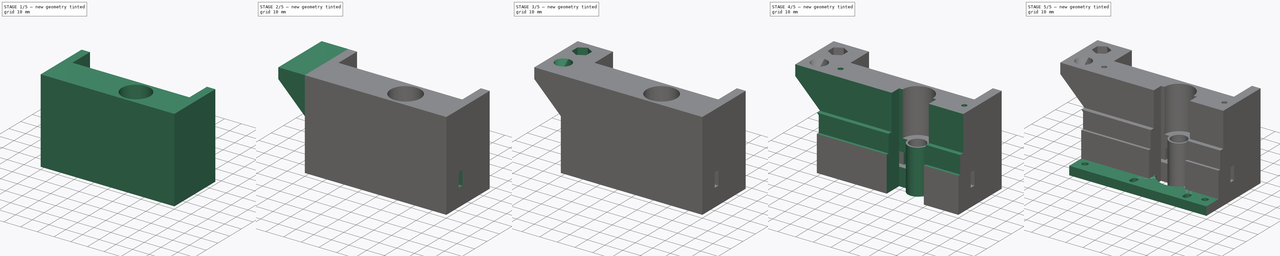
[diagram: build sequence overview — one tinted view per stage of 5, left to right]
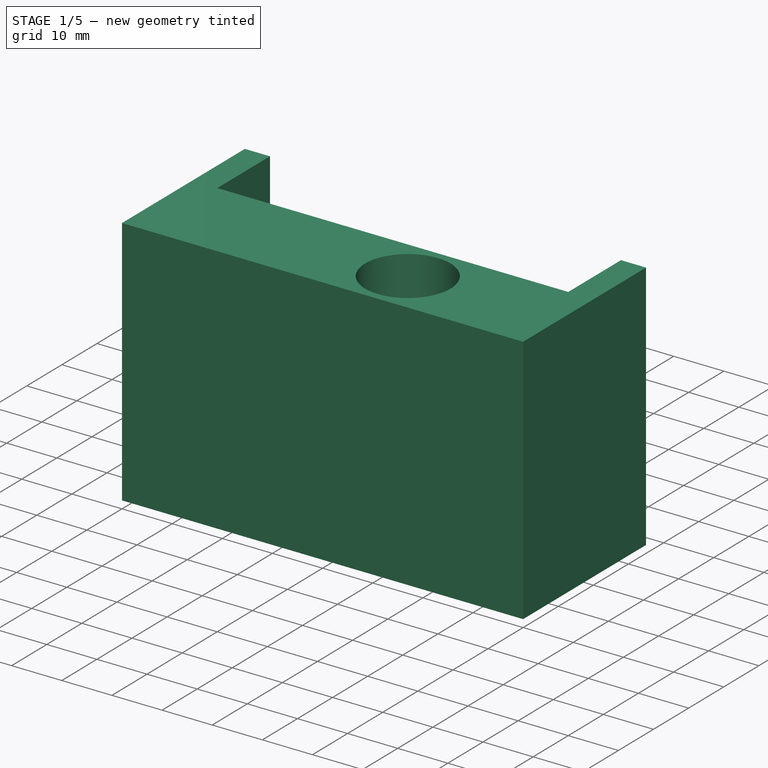
[diagram: stage 1 of 5 — iso view after this stage's code; geometry added in this stage tinted green]
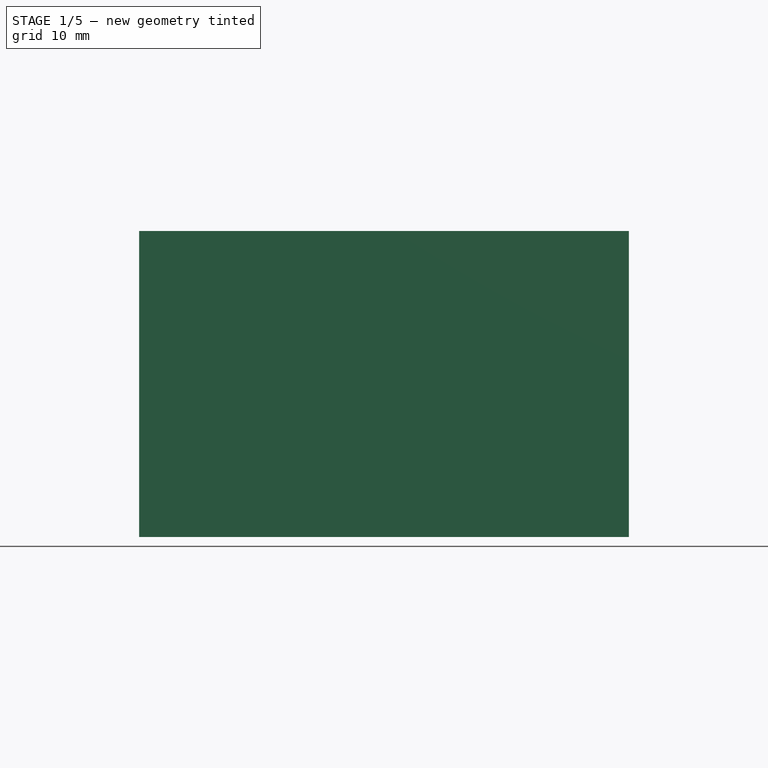
[diagram: stage 1 of 5 — front view after this stage's code; geometry added in this stage tinted green]
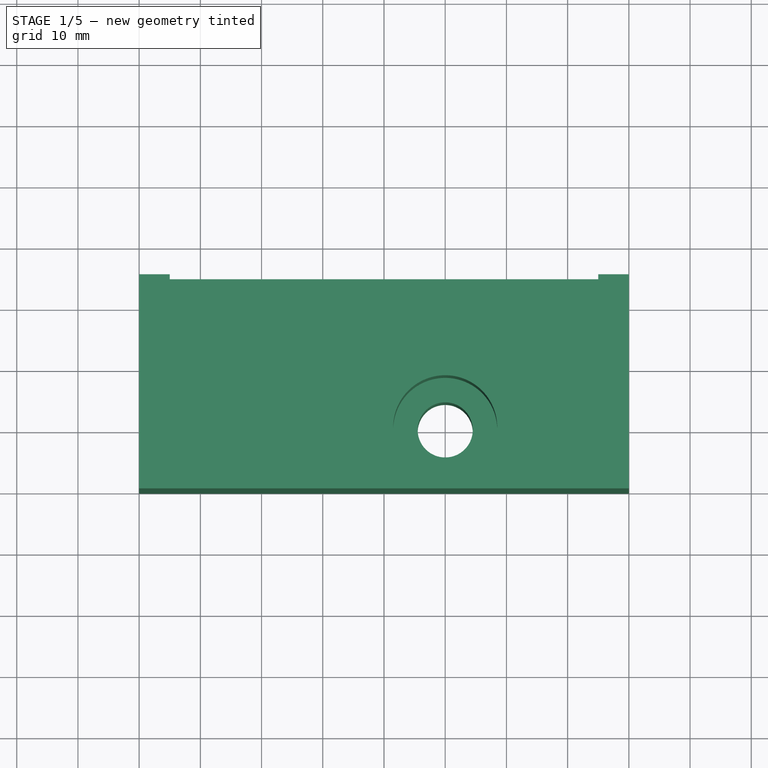
[diagram: stage 1 of 5 — top view after this stage's code; geometry added in this stage tinted green]
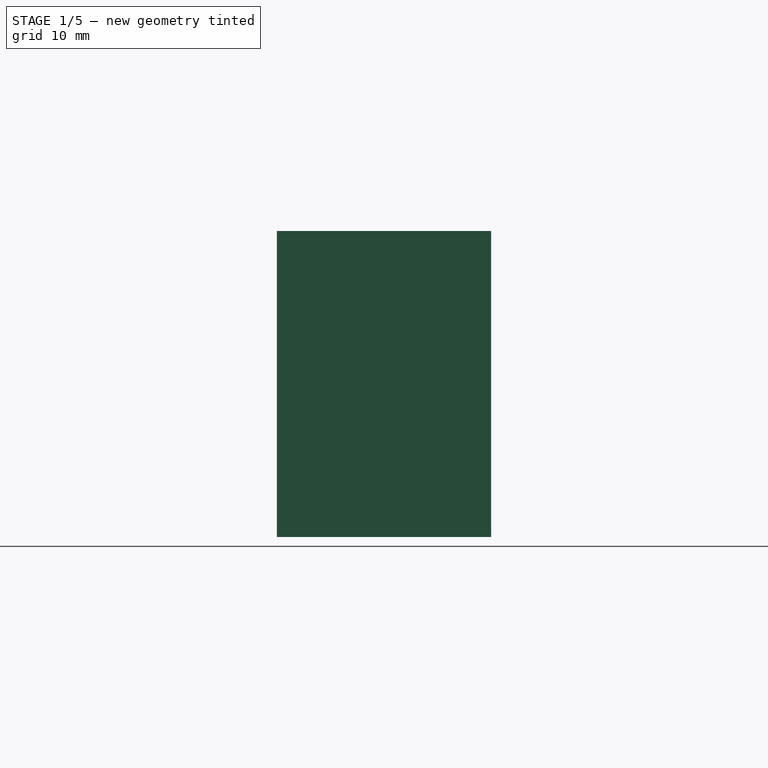
[diagram: stage 1 of 5 — right view after this stage's code; geometry added in this stage tinted green]
FCSTD DOCUMENT  (FreeCAD 0.19R)
Label: Ztower
License: All rights reserved
LicenseURL: http://en.wikipedia.org/wiki/All_rights_reserved
objects: Sketcher::SketchObject×20, PartDesign::Pocket×16, PartDesign::Pad×4, PartDesign::Body×2
note: 62 computed .brp shape members not serialized (recipe doc carries the construction recipe); baked Part::Feature solids carry a one-line shape summary decoded from their .brp

FEATURE [Sketcher::SketchObject] Sketch  label="body"
  FullyConstrained = true
  MapMode = 5
  Support = -> [XY_Plane]
  sketch-geometry (6):
    g0: LineSegment StartX=-40 StartY=35 StartZ=0 EndX=40 EndY=35 EndZ=0
    g1: LineSegment StartX=40 StartY=35 StartZ=0 EndX=40 EndY=0 EndZ=0
    g2: LineSegment StartX=40 StartY=0 StartZ=0 EndX=-40 EndY=0 EndZ=0
    g3: LineSegment StartX=-40 StartY=0 StartZ=0 EndX=-40 EndY=35 EndZ=0
    g4: Circle CenterX=-30 CenterY=5 CenterZ=0 NormalX=0 NormalY=0 NormalZ=1 AngleXU=0 Radius=2.4
    g5: Circle CenterX=30 CenterY=5 CenterZ=0 NormalX=0 NormalY=0 NormalZ=1 AngleXU=0 Radius=2.4
  constraints (16):
    c: Coincident(g0,g1)
    c: Coincident(g1,g2)
    c: Coincident(g2,g3)
    c: Coincident(g3,g0)
    c: Horizontal(g0)
    c: Vertical(g1)
    c: Vertical(g3)
    c: PointOnObject(g1,g-1)
    c: Symmetric(g1,g2,g-2)
    c: Symmetric(g4,g5,g-2)
    c: Distance(g5,g4) = 60
    c: Diameter(g5) = 4.8
    c: Equal(g5,g4)
    c: DistanceY(g5) = 5
    c: Distance(g2) = 80
    c: Distance(g1) = 35
FEATURE [PartDesign::Pad] Pad
  Direction = (1,1,1)
  Length = 50
  Length2 = 100
  Profile = -> Sketch
  Type = 0
FEATURE [PartDesign::Body] Body001  label="StepperBase"
  Group = -> [Sketch003,Pad001]
  Origin = -> Origin001
  Placement = pos=(0,0,50) rot=(0,0,1;0rad)
  Tip = -> Pad001
FEATURE [Sketcher::SketchObject] Sketch004  label="wiringbox"
  FullyConstrained = true
  MapMode = 5
  Placement = pos=(0,35,0) rot=(0,0.707107,0.707107;3.14159rad)
  sketch-geometry (4):
    g0: LineSegment StartX=-35 StartY=60 StartZ=0 EndX=35 EndY=60 EndZ=0
    g1: LineSegment StartX=35 StartY=60 StartZ=0 EndX=35 EndY=3 EndZ=0
    g2: LineSegment StartX=35 StartY=3 StartZ=0 EndX=-35 EndY=3 EndZ=0
    g3: LineSegment StartX=-35 StartY=3 StartZ=0 EndX=-35 EndY=60 EndZ=0
  constraints (11):
    c: Coincident(g0,g1)
    c: Coincident(g1,g2)
    c: Coincident(g2,g3)
    c: Coincident(g3,g0)
    c: Horizontal(g0)
    c: Vertical(g1)
    c: Vertical(g3)
    c: Symmetric(g1,g2,g-2)
    c: DistanceY(g1) = 3
    c: Distance(g2) = 70
    c: DistanceY(g0) = 60
FEATURE [Sketcher::SketchObject] Sketch005  label="DB37"
  FullyConstrained = false
  MapMode = 5
  Placement = pos=(0,7e-16,3) rot=(0,0,1;0rad)
  sketch-geometry (7):
    g0: LineSegment StartX=-29 StartY=33 StartZ=0 EndX=29 EndY=33 EndZ=0
    g1: LineSegment StartX=29 StartY=33 StartZ=0 EndX=29 EndY=21.5 EndZ=0
    g2: LineSegment StartX=29 StartY=21.5 StartZ=0 EndX=-29 EndY=21.5 EndZ=0
    g3: LineSegment StartX=-29 StartY=21.5 StartZ=0 EndX=-29 EndY=33 EndZ=0
    g4: Circle CenterX=-31.75 CenterY=27.25 CenterZ=0 NormalX=0 NormalY=0 NormalZ=1 AngleXU=0 Radius=1.4
    g5: Circle CenterX=31.75 CenterY=27.25 CenterZ=0 NormalX=0 NormalY=0 NormalZ=1 AngleXU=0 Radius=1.4
    g6: LineSegment StartX=-53.06 StartY=27.25 StartZ=0 EndX=58.6362 EndY=27.25 EndZ=0
  constraints (17):
    c: Coincident(g0,g1)
    c: Coincident(g1,g2)
    c: Coincident(g2,g3)
    c: Coincident(g3,g0)
    c: Horizontal(g2)
    c: Vertical(g1)
    c: Vertical(g3)
    c: Distance(g0) = 58
    c: Symmetric(g0,g0,g-2)
    c: Distance(g1) = 11.5
    c: DistanceY(g0) = 33
    c: Distance(g5,g4) = 63.5
    c: Symmetric(g5,g4,g-2)
    c: Diameter(g5) = 2.8
    c: Equal(g5,g4)
    c: Symmetric(g2,g0,g6)
    c: PointOnObject(g4,g6)
FEATURE [Sketcher::SketchObject] Sketch006  label="sideports"
  FullyConstrained = true
  MapMode = 5
  Placement = pos=(-40,0,0) rot=(0.57735,-0.57735,-0.57735;2.0944rad)
  sketch-geometry (4):
    g0: LineSegment StartX=-13 StartY=18 StartZ=0 EndX=-10 EndY=18 EndZ=0
    g1: LineSegment StartX=-10 StartY=18 StartZ=0 EndX=-10 EndY=10 EndZ=0
    g2: LineSegment StartX=-10 StartY=10 StartZ=0 EndX=-13 EndY=10 EndZ=0
    g3: LineSegment StartX=-13 StartY=10 StartZ=0 EndX=-13 EndY=18 EndZ=0
  constraints (12):
    c: Coincident(g0,g1)
    c: Coincident(g1,g2)
    c: Coincident(g2,g3)
    c: Coincident(g3,g0)
    c: Horizontal(g0)
    c: Horizontal(g2)
    c: Vertical(g1)
    c: Vertical(g3)
    c: Distance(g2) = 3
    c: Distance(g3) = 8
    c: DistanceY(g1) = 10
    c: DistanceX(g1) = -10
FEATURE [Sketcher::SketchObject] Sketch007  label="ports"
  FullyConstrained = true
  MapMode = 5
  Placement = pos=(0,20,-5e-15) rot=(0,0.707107,0.707107;3.14159rad)
  sketch-geometry (8):
    g0: LineSegment StartX=-35 StartY=18 StartZ=0 EndX=-30 EndY=18 EndZ=0
    g1: LineSegment StartX=-30 StartY=18 StartZ=0 EndX=-30 EndY=10 EndZ=0
    g2: LineSegment StartX=-30 StartY=10 StartZ=0 EndX=-35 EndY=10 EndZ=0
    g3: LineSegment StartX=-35 StartY=10 StartZ=0 EndX=-35 EndY=18 EndZ=0
    g4: LineSegment StartX=30 StartY=18 StartZ=0 EndX=35 EndY=18 EndZ=0
    g5: LineSegment StartX=35 StartY=18 StartZ=0 EndX=35 EndY=10 EndZ=0
    g6: LineSegment StartX=35 StartY=10 StartZ=0 EndX=30 EndY=10 EndZ=0
    g7: LineSegment StartX=30 StartY=10 StartZ=0 EndX=30 EndY=18 EndZ=0
  constraints (23):
    c: Coincident(g0,g1)
    c: Coincident(g1,g2)
    c: Coincident(g2,g3)
    c: Coincident(g3,g0)
    c: Horizontal(g0)
    c: Horizontal(g2)
    c: Vertical(g1)
    c: Vertical(g3)
    c: Coincident(g4,g5)
    c: Coincident(g5,g6)
    c: Coincident(g6,g7)
    c: Coincident(g7,g4)
    c: Horizontal(g4)
    c: Horizontal(g6)
    c: Vertical(g5)
    c: Vertical(g7)
    c: DistanceY(g5) = 10
    c: DistanceY(g1) = 10
    c: Distance(g1) = 8
    c: Distance(g4) = 5
    c: Distance(g0) = 5
    c: Symmetric(g0,g4,g-2)
    c: DistanceX(g4) = 35
FEATURE [Sketcher::SketchObject] Sketch008  label="shtelfboss"
  FullyConstrained = true
  MapMode = 5
  Placement = pos=(0,35,0) rot=(0,0.707107,0.707107;3.14159rad)
  sketch-geometry (4):
    g0: LineSegment StartX=40 StartY=29 StartZ=0 EndX=55 EndY=44 EndZ=0
    g1: LineSegment StartX=55 StartY=44 StartZ=0 EndX=55 EndY=50 EndZ=0
    g2: LineSegment StartX=55 StartY=50 StartZ=0 EndX=40 EndY=50 EndZ=0
    g3: LineSegment StartX=40 StartY=50 StartZ=0 EndX=40 EndY=29 EndZ=0
  constraints (12):
    c: Coincident(g0,g1)
    c: Vertical(g1)
    c: Coincident(g1,g2)
    c: Horizontal(g2)
    c: Coincident(g2,g3)
    c: Coincident(g3,g0)
    c: Vertical(g3)
    c: DistanceX(g0) = 40
    c: Angle(g0) = 0.785398
    c: Distance(g1) = 6
    c: Distance(g2) = 15
    c: DistanceY(g2) = 50
FEATURE [Sketcher::SketchObject] Sketch009  label="umbillical"
  FullyConstrained = true
  MapMode = 5
  Placement = pos=(0,1.11e-14,50) rot=(0,0,1;0rad)
  sketch-geometry (8):
    g0: Circle CenterX=-47 CenterY=12 CenterZ=0 NormalX=0 NormalY=0 NormalZ=1 AngleXU=0 Radius=4.5
    g1: LineSegment StartX=-42.9 StartY=24.6329 StartZ=0 EndX=-42.9 EndY=29.3671 EndZ=0
    g2: LineSegment StartX=-42.9 StartY=29.3671 StartZ=0 EndX=-47 EndY=31.7343 EndZ=0
    g3: LineSegment StartX=-47 StartY=31.7343 StartZ=0 EndX=-51.1 EndY=29.3671 EndZ=0
    g4: LineSegment StartX=-51.1 StartY=29.3671 StartZ=0 EndX=-51.1 EndY=24.6329 EndZ=0
    g5: LineSegment StartX=-51.1 StartY=24.6329 StartZ=0 EndX=-47 EndY=22.2657 EndZ=0
    g6: LineSegment StartX=-47 StartY=22.2657 StartZ=0 EndX=-42.9 EndY=24.6329 EndZ=0
    g7: Circle CenterX=-47 CenterY=27 CenterZ=0 NormalX=0 NormalY=0 NormalZ=1 AngleXU=0 Radius=4.73427
  constraints (20):
    c: Diameter(g0) = 9
    c: DistanceX(g0) = -47
    c: Coincident(g1,g2)
    c: Coincident(g2,g3)
    c: Coincident(g3,g4)
    c: Coincident(g4,g5)
    c: Coincident(g5,g6)
    c: Coincident(g6,g1)
    c: Equal(g1, g2-g6) x5
    c: PointOnObject(g1,g7)
    c: PointOnObject(g2,g7)
    c: PointOnObject(g3,g7)
    c: PointOnObject(g4,g7)
    c: PointOnObject(g5,g7)
    c: PointOnObject(g6,g7)
    c: Distance(g4,g1) = 8.2
    c: DistanceX(g7) = -47
    c: Vertical(g4)
    c: DistanceY(g7) = 27
    c: DistanceY(g0) = 12
FEATURE [Sketcher::SketchObject] Sketch012  label="umbNotch"
  FullyConstrained = false
  MapMode = 5
  Placement = pos=(-40,0,0) rot=(0.57735,-0.57735,-0.57735;2.0944rad)
  sketch-geometry (7):
    g0: LineSegment StartX=-26.9733 StartY=16 StartZ=0 EndX=-22.9733 EndY=17.6569 EndZ=0
    g1: LineSegment StartX=-22.9733 StartY=17.6569 StartZ=0 EndX=-22.9733 EndY=26.6569 EndZ=0
    g2: LineSegment StartX=-30.9733 StartY=26.6569 StartZ=0 EndX=-30.9733 EndY=17.6569 EndZ=0
    g3: LineSegment StartX=-30.9733 StartY=17.6569 StartZ=0 EndX=-26.9733 EndY=16 EndZ=0
    g4: LineSegment StartX=-30.9733 StartY=26.6569 StartZ=0 EndX=-29.1561 EndY=28.4741 EndZ=0
    g5: LineSegment StartX=-29.1561 StartY=28.4741 StartZ=0 EndX=-24.7906 EndY=28.4741 EndZ=0
    g6: LineSegment StartX=-24.7906 StartY=28.4741 StartZ=0 EndX=-22.9733 EndY=26.6569 EndZ=0
  constraints (20):
    c: Coincident(g0,g1)
    c: Coincident(g2,g3)
    c: Coincident(g3,g0)
    c: Equal(g0,g3)
    c: Distance(g1) = 9
    c: Equal(g2,g1)
    c: Vertical(g1)
    c: Angle(g0,g3) = 2.35619
    c: Distance(g0,g2) = 8
    c: DistanceY(g0,g2) = 0
    c: DistanceY(g0) = 16
    c: Coincident(g2,g4)
    c: Coincident(g4,g5)
    c: Horizontal(g5)
    c: Coincident(g5,g6)
    c: Coincident(g6,g1)
    c: Angle(g4) = 0.785398
    c: Angle(g6) = -0.785398
    c: Vertical(g2)
    c: Distance(g6) = 2.57
FEATURE [Sketcher::SketchObject] Sketch013  label="printhNotch"
  FullyConstrained = false
  MapMode = 5
  Placement = pos=(-52,0,0) rot=(0.57735,-0.57735,-0.57735;2.0944rad)
  sketch-geometry (4):
    g0: LineSegment StartX=-16.5 StartY=41.843 StartZ=0 EndX=-7.5 EndY=41.843 EndZ=0
    g1: LineSegment StartX=-7.5 StartY=41.843 StartZ=0 EndX=-7.5 EndY=36.3811 EndZ=0
    g2: LineSegment StartX=-7.5 StartY=36.3811 StartZ=0 EndX=-16.5 EndY=36.3811 EndZ=0
    g3: LineSegment StartX=-16.5 StartY=36.3811 StartZ=0 EndX=-16.5 EndY=41.843 EndZ=0
  constraints (10):
    c: Coincident(g0,g1)
    c: Coincident(g1,g2)
    c: Coincident(g2,g3)
    c: Coincident(g3,g0)
    c: Horizontal(g0)
    c: Horizontal(g2)
    c: Vertical(g1)
    c: Vertical(g3)
    c: Distance(g2) = 9
    c: DistanceX(g1) = -7.5
FEATURE [Sketcher::SketchObject] Sketch014  label="pritnfilm"
  FullyConstrained = false
  MapMode = 5
  Placement = pos=(0,0,41.9005) rot=(1,0,0;3.14159rad)
  sketch-geometry (4):
    g0: LineSegment StartX=-52.8419 StartY=-7.51623 StartZ=0 EndX=-40.4441 EndY=-7.51623 EndZ=0
    g1: LineSegment StartX=-40.4441 StartY=-7.51623 StartZ=0 EndX=-40.4441 EndY=-16.4989 EndZ=0
    g2: LineSegment StartX=-40.4441 StartY=-16.4989 StartZ=0 EndX=-52.8419 EndY=-16.4989 EndZ=0
    g3: LineSegment StartX=-52.8419 StartY=-16.4989 StartZ=0 EndX=-52.8419 EndY=-7.51623 EndZ=0
  constraints (8):
    c: Coincident(g0,g1)
    c: Coincident(g1,g2)
    c: Coincident(g2,g3)
    c: Coincident(g3,g0)
    c: Horizontal(g0)
    c: Horizontal(g2)
    c: Vertical(g1)
    c: Vertical(g3)
FEATURE [PartDesign::Pocket] Pocket
  BaseFeature = -> Pad
  Length = 5
  Length2 = 100
  Profile = -> Sketch002
  Type = 1
FEATURE [Sketcher::SketchObject] Sketch015  label="Coupler"
  FullyConstrained = true
  MapMode = 5
  Placement = pos=(0,0,50) rot=(0,0,1;0rad)
  Support = -> [Pocket]
  sketch-geometry (1):
    g0: Circle CenterX=10 CenterY=10 CenterZ=0 NormalX=0 NormalY=0 NormalZ=1 AngleXU=0 Radius=8.5
  constraints (3):
    c: DistanceX(g0) = 10
    c: DistanceY(g0) = 10
    c: Diameter(g0) = 17
FEATURE [PartDesign::Pocket] Pocket001
  BaseFeature = -> Pocket
  Length = 25
  Length2 = 100
  Profile = -> Sketch015
  Type = 0
FEATURE [PartDesign::Pocket] Pocket002
  BaseFeature = -> Pocket001
  Length = 15
  Length2 = 100
  Profile = -> Sketch004
  Type = 0
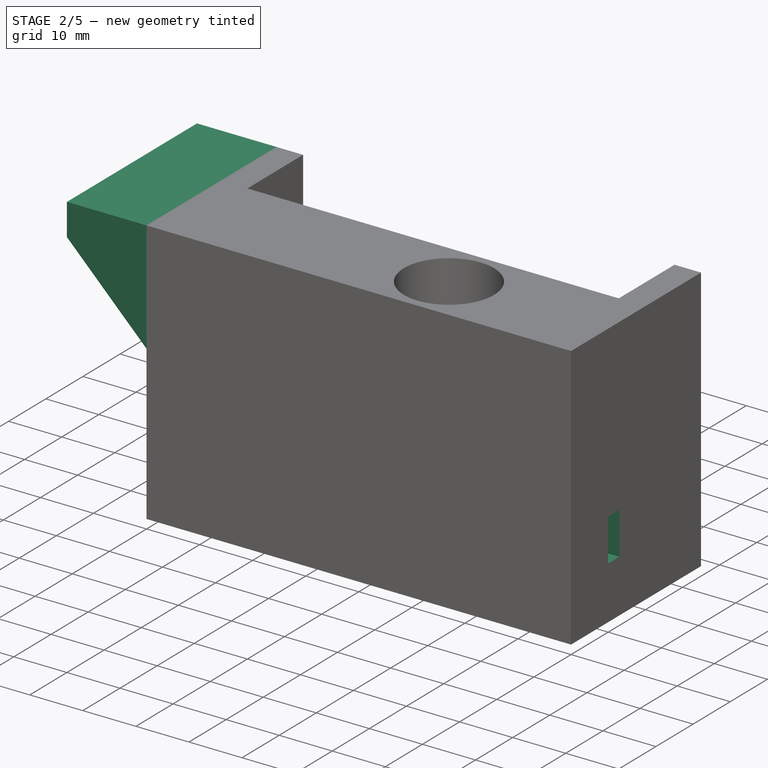
[diagram: stage 2 of 5 — iso view after this stage's code; geometry added in this stage tinted green]
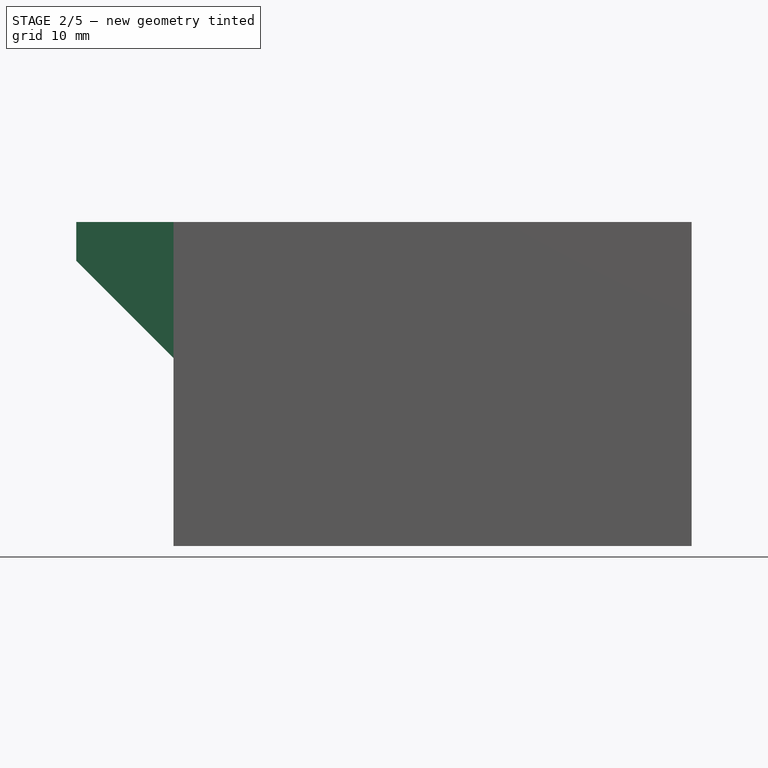
[diagram: stage 2 of 5 — front view after this stage's code; geometry added in this stage tinted green]
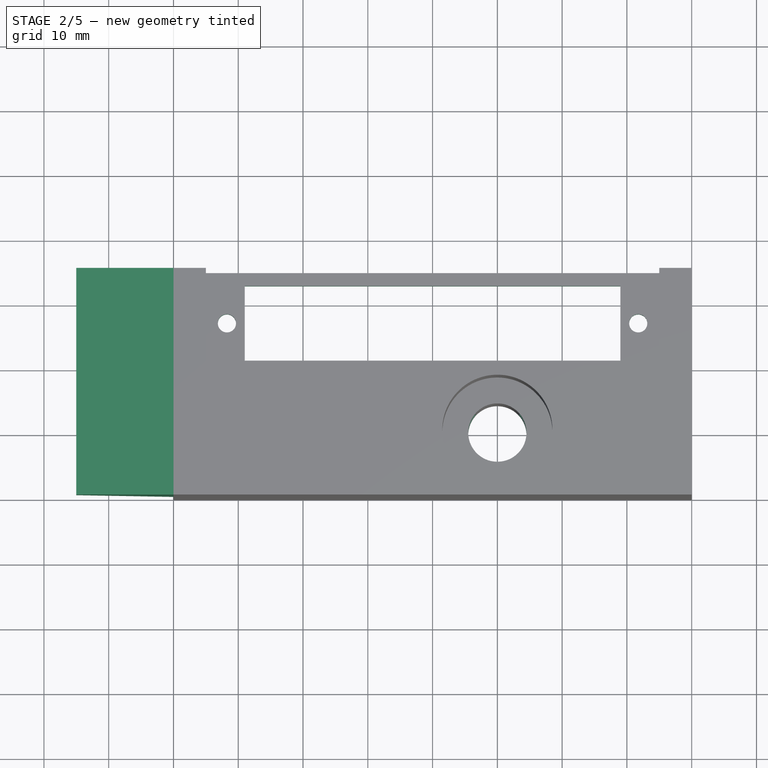
[diagram: stage 2 of 5 — top view after this stage's code; geometry added in this stage tinted green]
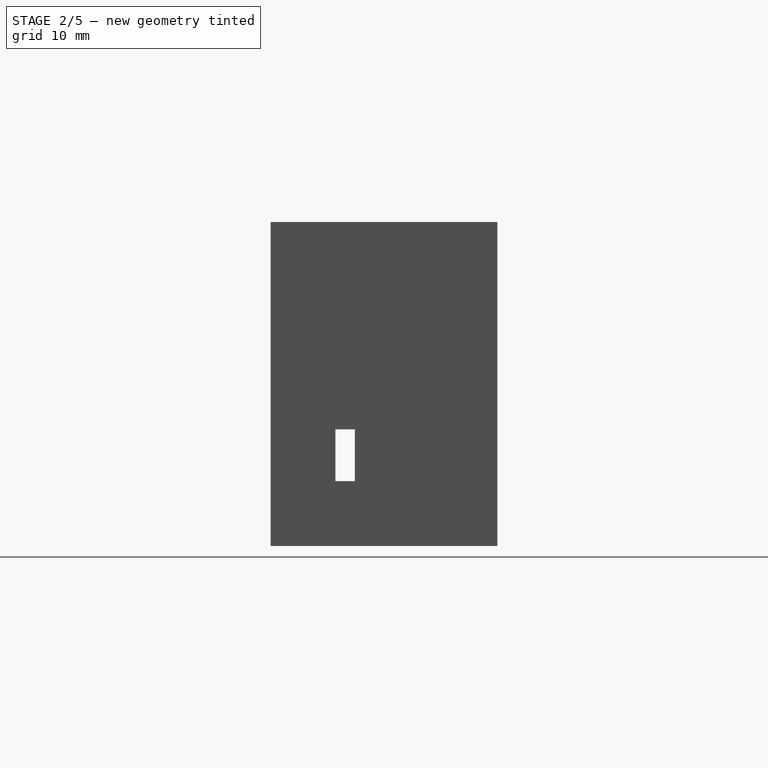
[diagram: stage 2 of 5 — right view after this stage's code; geometry added in this stage tinted green]
FEATURE [PartDesign::Pocket] Pocket003
  BaseFeature = -> Pocket002
  Length = 5
  Length2 = 100
  Profile = -> Sketch005
  Type = 0
FEATURE [PartDesign::Pocket] Pocket004
  BaseFeature = -> Pocket003
  Length = 5
  Length2 = 100
  Profile = -> Sketch006
  Type = 1
FEATURE [PartDesign::Pocket] Pocket005
  BaseFeature = -> Pocket004
  Length = 10
  Length2 = 100
  Profile = -> Sketch007
  Type = 0
FEATURE [PartDesign::Pad] Pad002
  BaseFeature = -> Pocket005
  Direction = (1,1,1)
  Length = 35
  Length2 = 100
  Profile = -> Sketch008
  Reversed = true
  Type = 0
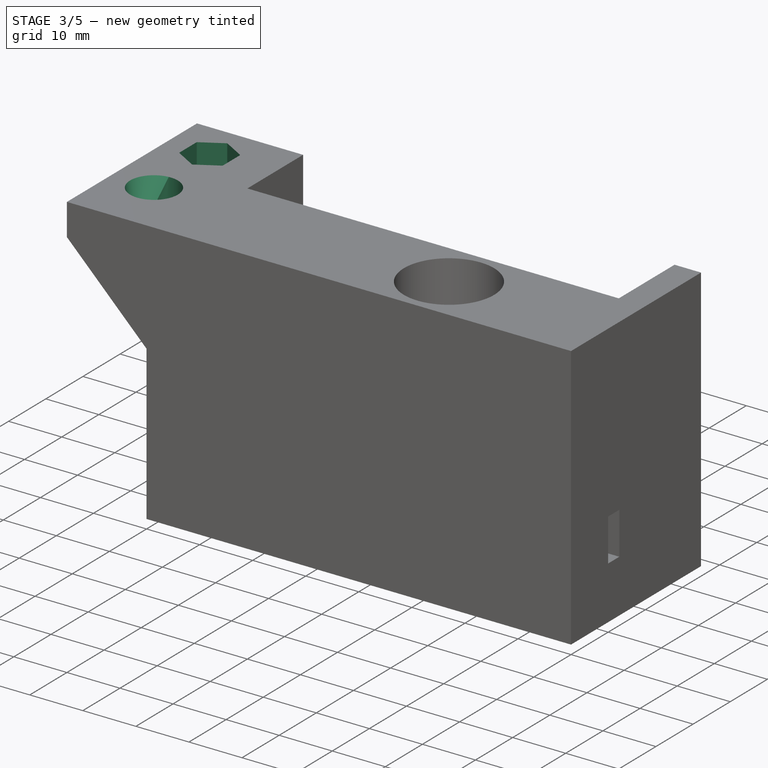
[diagram: stage 3 of 5 — iso view after this stage's code; geometry added in this stage tinted green]
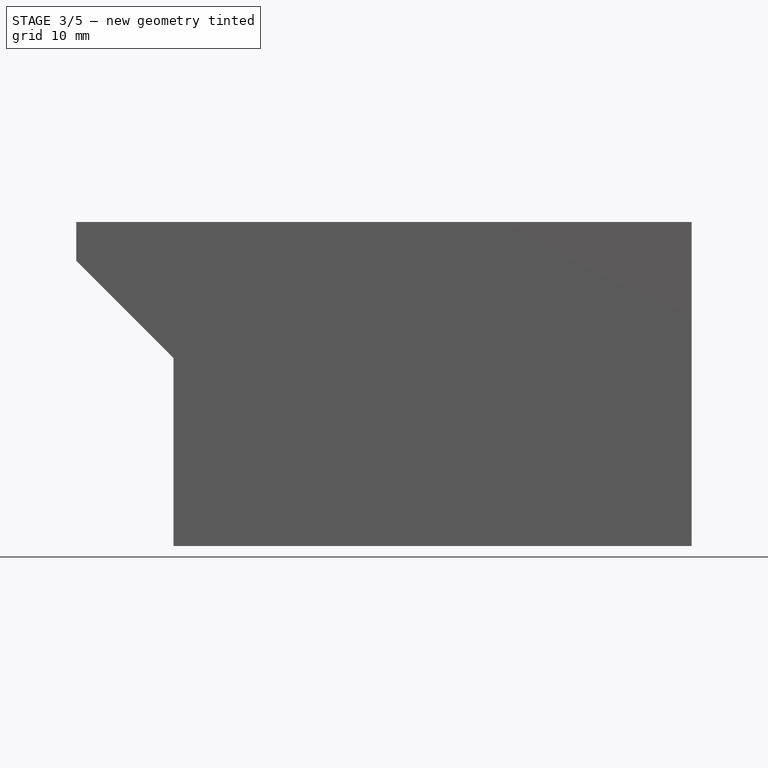
[diagram: stage 3 of 5 — front view after this stage's code; geometry added in this stage tinted green]
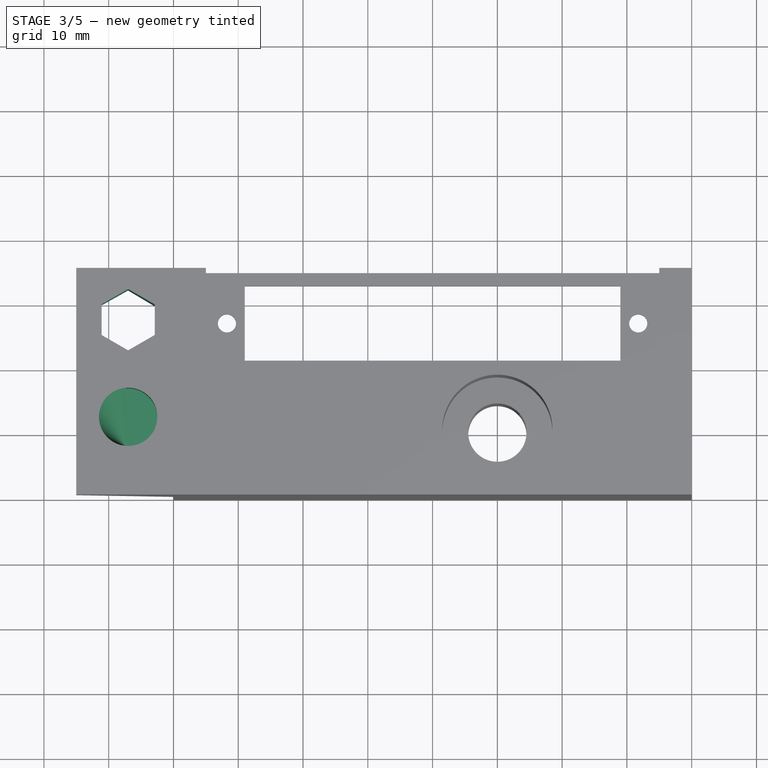
[diagram: stage 3 of 5 — top view after this stage's code; geometry added in this stage tinted green]
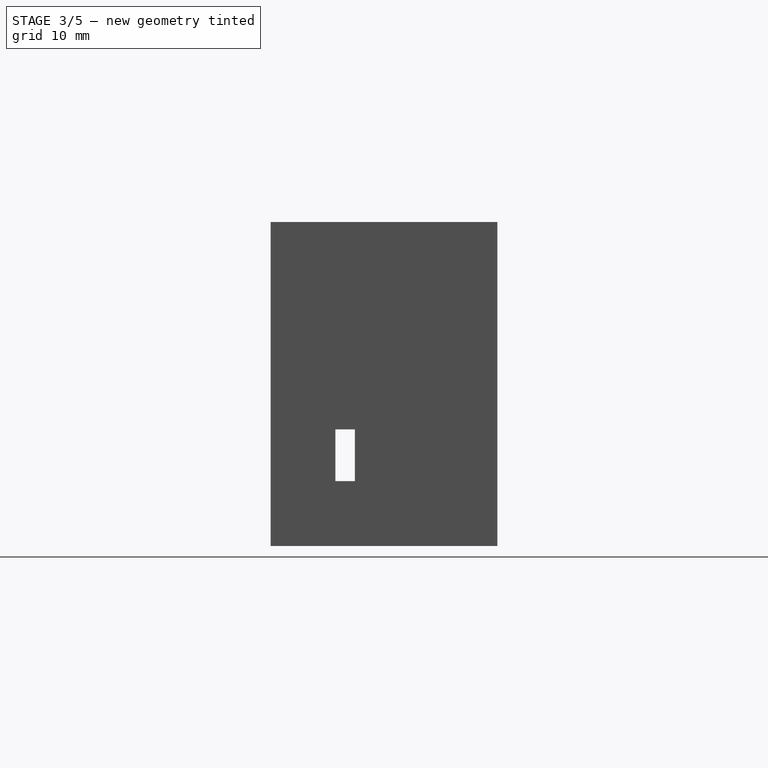
[diagram: stage 3 of 5 — right view after this stage's code; geometry added in this stage tinted green]
FEATURE [PartDesign::Pocket] Pocket006
  BaseFeature = -> Pad002
  Length = 5
  Length2 = 100
  Profile = -> Sketch009
  Type = 1
FEATURE [PartDesign::Pocket] Pocket007
  BaseFeature = -> Pocket006
  Length = 5
  Length2 = 100
  Profile = -> Sketch013
  Type = 4
FEATURE [PartDesign::Pad] Pad003
  BaseFeature = -> Pocket007
  Direction = (1,1,1)
  Length = 0.3
  Length2 = 100
  Profile = -> Sketch014
  Reversed = true
  Type = 0
FEATURE [PartDesign::Pocket] Pocket008
  BaseFeature = -> Pad003
  Length = 5
  Length2 = 100
  Profile = -> Sketch012
  Type = 0
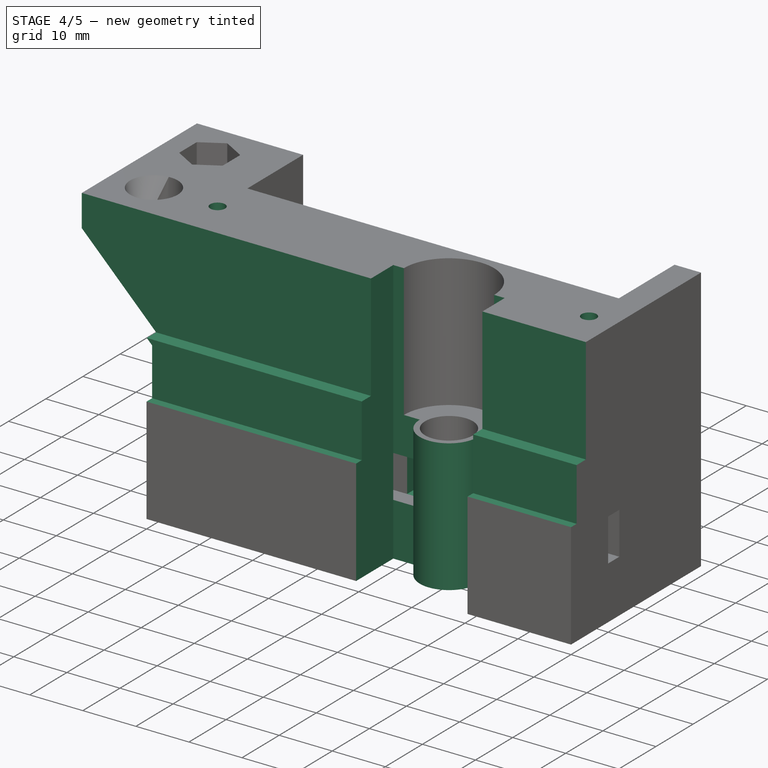
[diagram: stage 4 of 5 — iso view after this stage's code; geometry added in this stage tinted green]
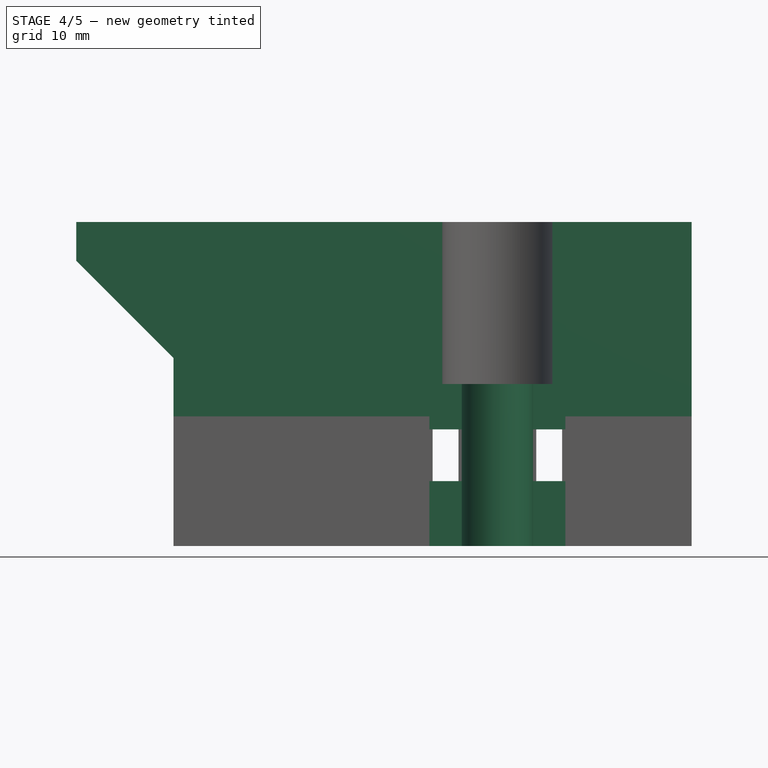
[diagram: stage 4 of 5 — front view after this stage's code; geometry added in this stage tinted green]
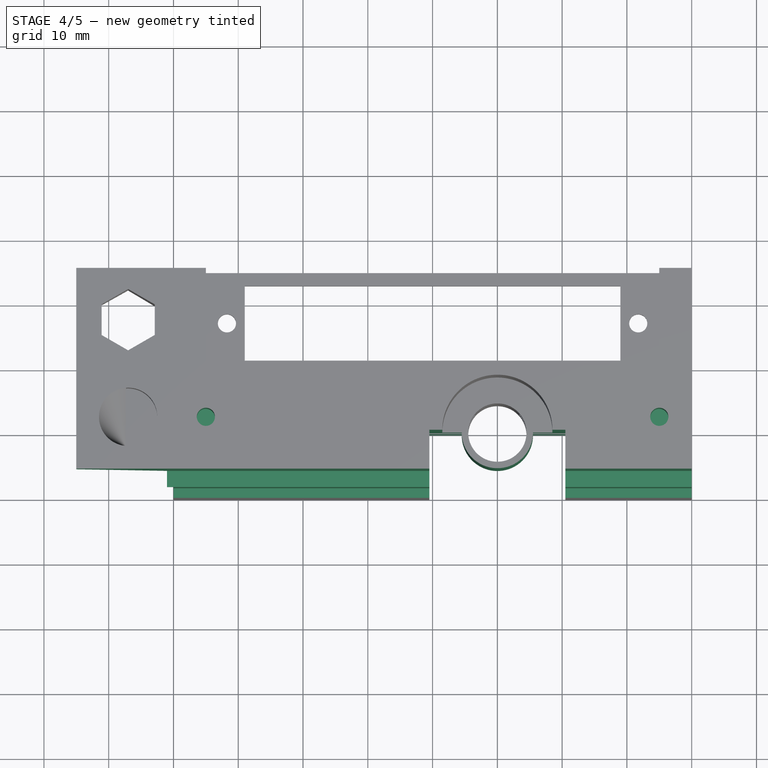
[diagram: stage 4 of 5 — top view after this stage's code; geometry added in this stage tinted green]
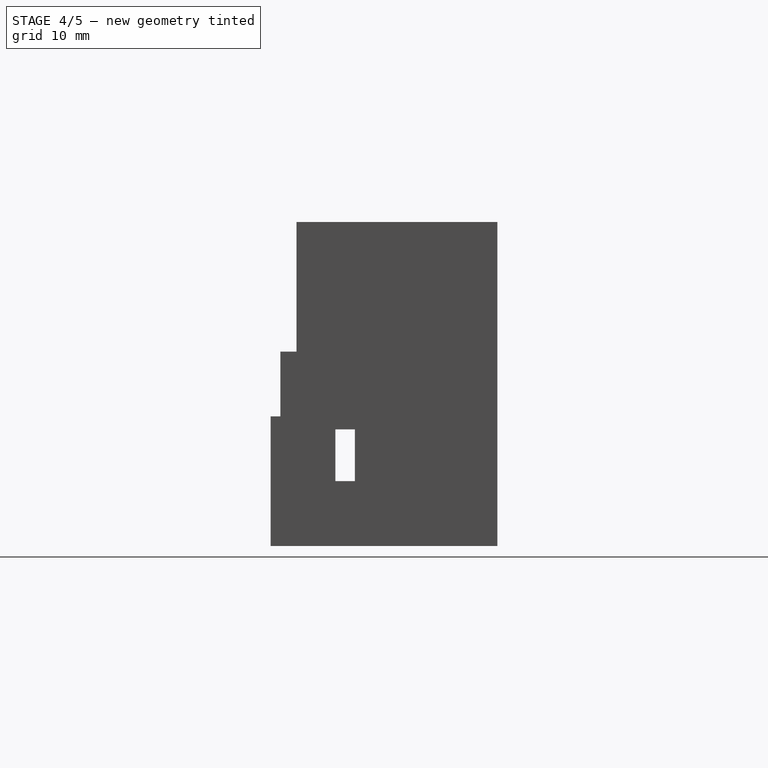
[diagram: stage 4 of 5 — right view after this stage's code; geometry added in this stage tinted green]
FEATURE [Sketcher::SketchObject] Sketch017  label="backReleif"
  FullyConstrained = true
  MapMode = 5
  Placement = pos=(40,0,0) rot=(0.57735,0.57735,0.57735;2.0944rad)
  Support = -> [Pocket008]
  sketch-geometry (6):
    g0: LineSegment StartX=4 StartY=53.2 StartZ=0 EndX=4 EndY=30 EndZ=0
    g1: LineSegment StartX=4 StartY=30 StartZ=0 EndX=1.5 EndY=30 EndZ=0
    g2: LineSegment StartX=-2.11 StartY=61.28 StartZ=0 EndX=4 EndY=53.2 EndZ=0
    g3: LineSegment StartX=1.5 StartY=30 StartZ=0 EndX=1.5 EndY=20 EndZ=0
    g4: LineSegment StartX=1.5 StartY=20 StartZ=0 EndX=-2.11 EndY=20 EndZ=0
    g5: LineSegment StartX=-2.11 StartY=20 StartZ=0 EndX=-2.11 EndY=61.28 EndZ=0
  constraints (18):
    c: Vertical(g0)
    c: Coincident(g0,g1)
    c: Coincident(g2,g0)
    c: DistanceX(g0) = 4
    c: DistanceY(g0) = 30
    c: Coincident(g1,g3)
    c: Vertical(g3)
    c: Coincident(g3,g4)
    c: Coincident(g4,g5)
    c: Vertical(g5)
    c: Coincident(g2,g5)
    c: Horizontal(g1)
    c: Horizontal(g4)
    c: DistanceY(g3) = 20
    c: DistanceX(g2) = -2.11
    c: DistanceY(g2) = 61.28
    c: DistanceY(g0) = 53.2
    c: DistanceX(g3) = 1.5
FEATURE [PartDesign::Pocket] Pocket009
  BaseFeature = -> Pocket008
  Length = 5
  Length2 = 100
  Profile = -> Sketch017
  Type = 1
FEATURE [Sketcher::SketchObject] Sketch018  label="StepperPlatBolts"
  FullyConstrained = true
  MapMode = 5
  Placement = pos=(0,0,50) rot=(0,0,1;0rad)
  Support = -> [Pocket009]
  sketch-geometry (2):
    g0: Circle CenterX=-35 CenterY=12 CenterZ=0 NormalX=0 NormalY=0 NormalZ=1 AngleXU=0 Radius=1.4
    g1: Circle CenterX=35 CenterY=12 CenterZ=0 NormalX=0 NormalY=0 NormalZ=1 AngleXU=0 Radius=1.4
  constraints (5):
    c: Symmetric(g1,g0,g-2)
    c: Distance(g1,g0) = 70
    c: DistanceY(g1) = 12
    c: Diameter(g1) = 2.8
    c: Equal(g1,g0)
FEATURE [PartDesign::Pocket] Pocket010
  BaseFeature = -> Pocket009
  Length = 10
  Length2 = 100
  Profile = -> Sketch018
  Type = 0
FEATURE [Sketcher::SketchObject] Sketch019  label="5mmbolts"
  FullyConstrained = true
  MapMode = 5
  Placement = pos=(0,0,0) rot=(1,0,0;3.14159rad)
  sketch-geometry (2):
    g0: Circle CenterX=-30 CenterY=-5 CenterZ=0 NormalX=0 NormalY=0 NormalZ=1 AngleXU=0 Radius=2.4
    g1: Circle CenterX=30 CenterY=-5 CenterZ=0 NormalX=0 NormalY=0 NormalZ=1 AngleXU=0 Radius=2.4
  constraints (5):
    c: Symmetric(g1,g0,g-2)
    c: Diameter(g1) = 4.8
    c: Equal(g1,g0)
    c: Distance(g1,g0) = 60
    c: DistanceY(g1) = -5
FEATURE [Sketcher::SketchObject] Sketch020  label="wirespace"
  FullyConstrained = true
  MapMode = 5
  Placement = pos=(0,0,0) rot=(1,0,0;3.14159rad)
  Support = -> [Pocket010]
  sketch-geometry (6):
    g0: ArcOfCircle CenterX=10 CenterY=-10 CenterZ=0 NormalX=0 NormalY=0 NormalZ=1 AngleXU=0 Radius=5.5 StartAngle=0 EndAngle=3.14159
    g1: LineSegment StartX=4.5 StartY=-10 StartZ=0 EndX=-0.5 EndY=-10 EndZ=0
    g2: LineSegment StartX=15.5 StartY=-10 StartZ=0 EndX=20.5 EndY=-10 EndZ=0
    g3: LineSegment StartX=20.5 StartY=-10 StartZ=0 EndX=20.5 EndY=2.44 EndZ=0
    g4: LineSegment StartX=-0.5 StartY=-10 StartZ=0 EndX=-0.5 EndY=2.44 EndZ=0
    g5: LineSegment StartX=-0.5 StartY=2.44 StartZ=0 EndX=20.5 EndY=2.44 EndZ=0
  constraints (19):
    c: Coincident(g1,g0)
    c: Horizontal(g1)
    c: Coincident(g2,g0)
    c: Horizontal(g2)
    c: Coincident(g3,g2)
    c: Vertical(g3)
    c: Coincident(g4,g1)
    c: Vertical(g4)
    c: Coincident(g5,g4)
    c: Coincident(g5,g3)
    c: Horizontal(g5)
    c: Distance(g2) = 5
    c: Distance(g1) = 5
    c: Diameter(g0) = 11
    c: DistanceY(g0) = -10
    c: DistanceY(g0) = -10
    c: DistanceX(g0) = 10
    c: DistanceY(g0) = -10
    c: DistanceY(g4) = 2.44
FEATURE [PartDesign::Pocket] Pocket011
  BaseFeature = -> Pocket010
  Length = 30
  Length2 = 100
  Profile = -> Sketch020
  Type = 1
FEATURE [Sketcher::SketchObject] Sketch021  label="wirports"
  FullyConstrained = true
  MapMode = 5
  Placement = pos=(0,13,0) rot=(1,0,0;1.5708rad)
  Support = -> [Pocket011]
  sketch-geometry (8):
    g0: LineSegment StartX=16 StartY=18 StartZ=0 EndX=20 EndY=18 EndZ=0
    g1: LineSegment StartX=20 StartY=18 StartZ=0 EndX=20 EndY=10 EndZ=0
    g2: LineSegment StartX=20 StartY=10 StartZ=0 EndX=16 EndY=10 EndZ=0
    g3: LineSegment StartX=16 StartY=10 StartZ=0 EndX=16 EndY=18 EndZ=0
    g4: LineSegment StartX=0 StartY=18 StartZ=0 EndX=4 EndY=18 EndZ=0
    g5: LineSegment StartX=4 StartY=18 StartZ=0 EndX=4 EndY=10 EndZ=0
    g6: LineSegment StartX=4 StartY=10 StartZ=0 EndX=0 EndY=10 EndZ=0
    g7: LineSegment StartX=0 StartY=10 StartZ=0 EndX=0 EndY=18 EndZ=0
  constraints (24):
    c: Coincident(g0,g1)
    c: Coincident(g1,g2)
    c: Coincident(g2,g3)
    c: Coincident(g3,g0)
    c: Horizontal(g0)
    c: Horizontal(g2)
    c: Vertical(g1)
    c: Vertical(g3)
    c: Coincident(g4,g5)
    c: Coincident(g5,g6)
    c: Coincident(g6,g7)
    c: Coincident(g7,g4)
    c: Horizontal(g4)
    c: Horizontal(g6)
    c: Vertical(g5)
    c: Vertical(g7)
    c: PointOnObject(g4,g-2)
    c: DistanceY(g5) = 10
    c: DistanceY(g2) = 10
    c: DistanceY(g0) = 18
    c: DistanceY(g4) = 18
    c: DistanceX(g2) = 16
    c: DistanceX(g5) = 4
    c: DistanceX(g1) = 20
FEATURE [Sketcher::SketchObject] Sketch024  label="umbBolt"
  FullyConstrained = true
  MapMode = 5
  Placement = pos=(0,20,-5e-15) rot=(0,0.707107,0.707107;3.14159rad)
  sketch-geometry (1):
    g0: Circle CenterX=27.1616 CenterY=15.4809 CenterZ=0 NormalX=0 NormalY=0 NormalZ=1 AngleXU=0 Radius=1.4
  constraints (3):
    c: Diameter(g0) = 2.8
    c: DistanceX(g0) = 27.1616
    c: DistanceY(g0) = 15.4809
FEATURE [Sketcher::SketchObject] Sketch025  label="CoverBolts"
  FullyConstrained = false
  MapMode = 5
  Placement = pos=(0,35,0) rot=(0,0.707107,0.707107;3.14159rad)
  sketch-geometry (2):
    g0: Circle CenterX=-37.5 CenterY=40 CenterZ=0 NormalX=0 NormalY=0 NormalZ=1 AngleXU=0 Radius=1.4
    g1: Circle CenterX=37.5 CenterY=10 CenterZ=0 NormalX=0 NormalY=0 NormalZ=1 AngleXU=0 Radius=1.4
  constraints (5):
    c: Diameter(g0) = 2.8
    c: Equal(g0,g1)
    c: DistanceX(g0) = -37.5
    c: DistanceY(g1) = 10
    c: DistanceY(g0) = 40
FEATURE [PartDesign::Pocket] Pocket012
  BaseFeature = -> Pocket011
  Length = 5
  Length2 = 100
  Profile = -> Sketch021
  Type = 1
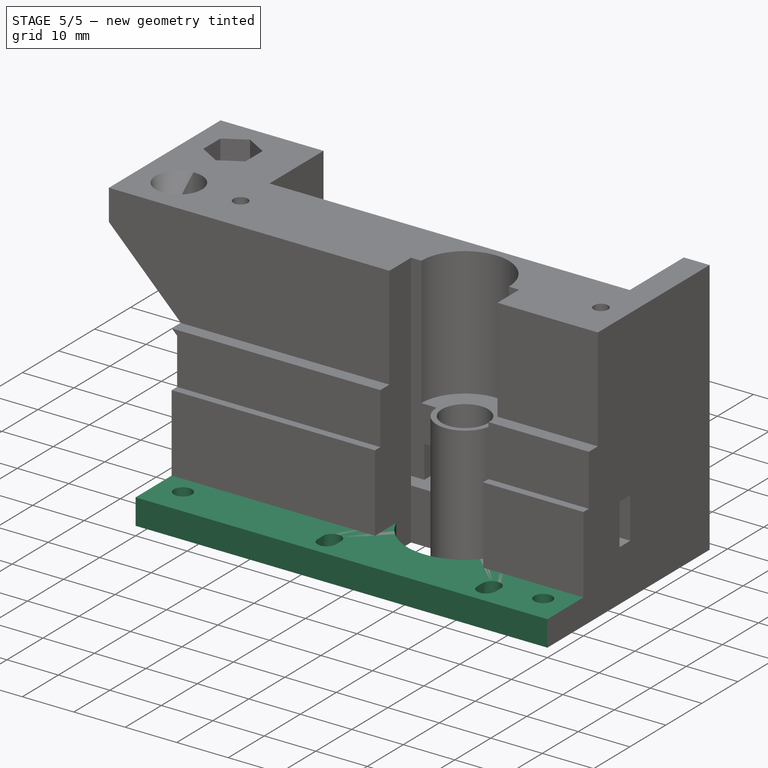
[diagram: stage 5 of 5 — iso view after this stage's code; geometry added in this stage tinted green]
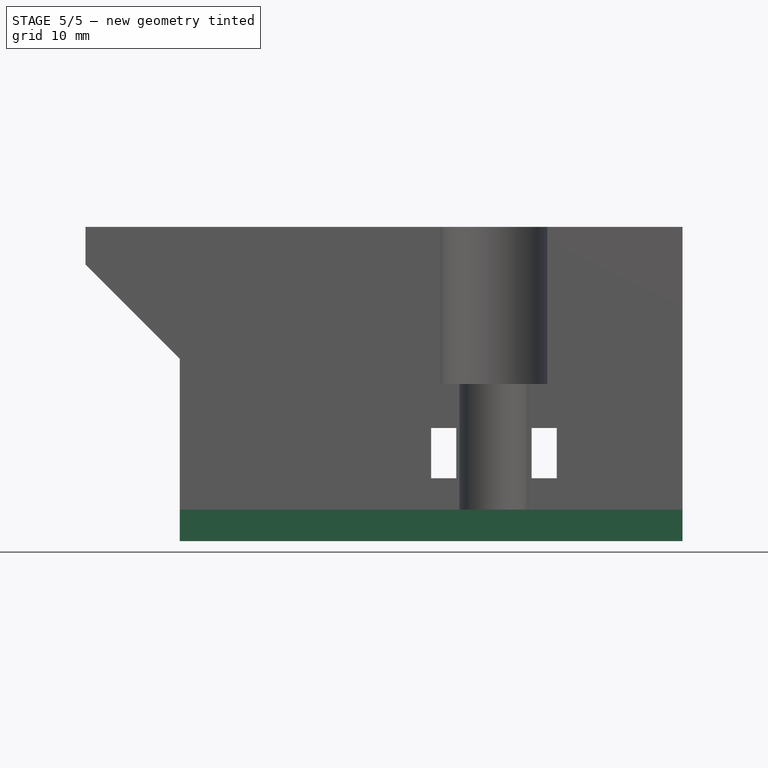
[diagram: stage 5 of 5 — front view after this stage's code; geometry added in this stage tinted green]
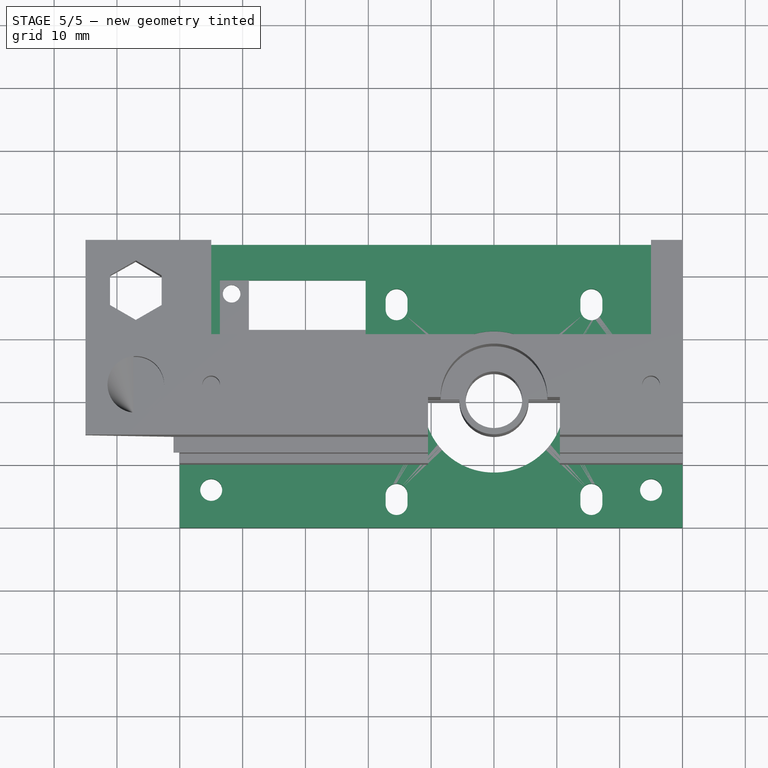
[diagram: stage 5 of 5 — top view after this stage's code; geometry added in this stage tinted green]
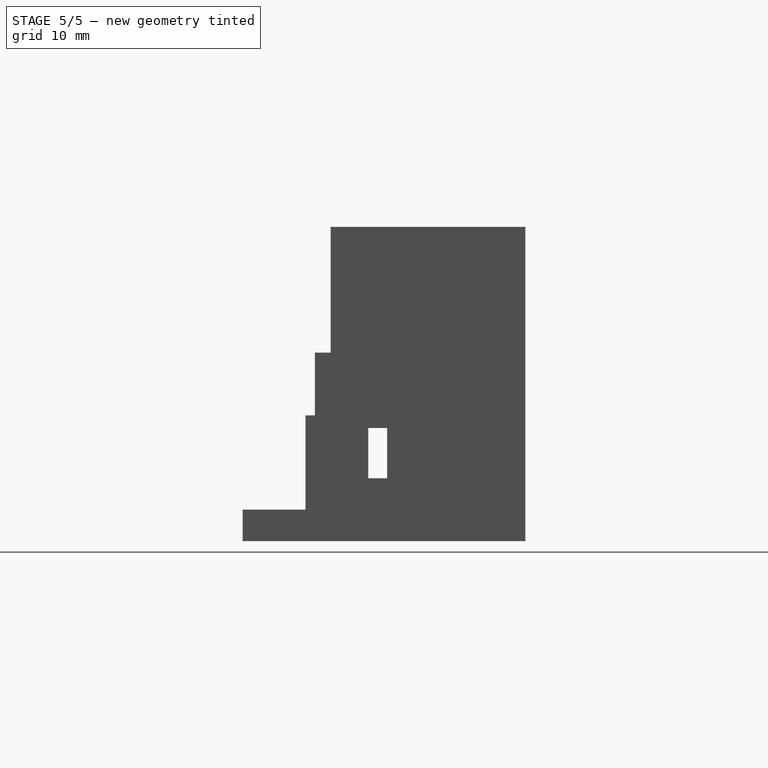
[diagram: stage 5 of 5 — right view after this stage's code; geometry added in this stage tinted green]
FEATURE [Sketcher::SketchObject] Sketch002  label="leadscrew"
  FullyConstrained = true
  MapMode = 5
  Placement = pos=(0,0,50) rot=(0,0,1;0rad)
  sketch-geometry (7):
    g0: Circle CenterX=10 CenterY=10 CenterZ=0 NormalX=0 NormalY=0 NormalZ=1 AngleXU=0 Radius=4.5
    g1: ArcOfCircle CenterX=10 CenterY=10 CenterZ=0 NormalX=0 NormalY=0 NormalZ=1 AngleXU=0 Radius=5.5 StartAngle=3.51376 EndAngle=5.91102
    g2: LineSegment StartX=4.87652 StartY=8 StartZ=0 EndX=0.876525 EndY=8 EndZ=0
    g3: LineSegment StartX=0.876525 StartY=8 StartZ=0 EndX=0.876525 EndY=-1.92 EndZ=0
    g4: LineSegment StartX=0.876525 StartY=-1.92 StartZ=0 EndX=19.1235 EndY=-1.92 EndZ=0
    g5: LineSegment StartX=19.1235 StartY=-1.92 StartZ=0 EndX=19.1235 EndY=8 EndZ=0
    g6: LineSegment StartX=15.1235 StartY=8 StartZ=0 EndX=19.1235 EndY=8 EndZ=0
  constraints (21):
    c: DistanceX(g0) = 10
    c: DistanceY(g0) = 10
    c: Diameter(g0) = 9
    c: Coincident(g1,g0)
    c: Coincident(g2,g1)
    c: Horizontal(g2)
    c: Coincident(g3,g2)
    c: Vertical(g3)
    c: Coincident(g4,g3)
    c: Horizontal(g4)
    c: Coincident(g5,g4)
    c: Vertical(g5)
    c: Coincident(g6,g1)
    c: Coincident(g6,g5)
    c: Horizontal(g6)
    c: DistanceY(g2) = 8
    c: DistanceY(g5) = 8
    c: Diameter(g1) = 11
    c: DistanceX(g2,g2) = 4
    c: Distance(g6) = 4
    c: DistanceY(g4) = -1.92
FEATURE [Sketcher::SketchObject] Sketch003
  FullyConstrained = false
  MapMode = 5
  Support = -> [XY_Plane001]
  sketch-geometry (35):
    g0: LineSegment StartX=-11 StartY=31 StartZ=0 EndX=31 EndY=31 EndZ=0
    g1: LineSegment StartX=31 StartY=31 StartZ=0 EndX=31 EndY=-11 EndZ=0
    g2: LineSegment StartX=31 StartY=-11 StartZ=0 EndX=-11 EndY=-11 EndZ=0
    g3: LineSegment StartX=-11 StartY=-11 StartZ=0 EndX=-11 EndY=31 EndZ=0
    g4: Circle CenterX=10 CenterY=10 CenterZ=0 NormalX=0 NormalY=0 NormalZ=1 AngleXU=0 Radius=0.980681
    g5: LineSegment StartX=-40 StartY=35 StartZ=0 EndX=40 EndY=35 EndZ=0
    g6: LineSegment StartX=40 StartY=35 StartZ=0 EndX=40 EndY=-10 EndZ=0
    g7: LineSegment StartX=40 StartY=-10 StartZ=0 EndX=-40 EndY=-10 EndZ=0
    g8: LineSegment StartX=-40 StartY=-10 StartZ=0 EndX=-40 EndY=35 EndZ=0
    g9: LineSegment StartX=-43.1827 StartY=10 StartZ=0 EndX=48.034 EndY=10 EndZ=0
    g10: ArcOfCircle CenterX=25.5 CenterY=26.25 CenterZ=0 NormalX=0 NormalY=0 NormalZ=1 AngleXU=0 Radius=1.75 StartAngle=0 EndAngle=3.14159
    g11: ArcOfCircle CenterX=25.5 CenterY=24.75 CenterZ=0 NormalX=0 NormalY=0 NormalZ=1 AngleXU=0 Radius=1.75 StartAngle=3.14159 EndAngle=6.28319
    g12: LineSegment StartX=23.75 StartY=26.25 StartZ=0 EndX=23.75 EndY=24.75 EndZ=0
    g13: LineSegment StartX=27.25 StartY=26.25 StartZ=0 EndX=27.25 EndY=24.75 EndZ=0
    g14: ArcOfCircle CenterX=-5.5 CenterY=26.25 CenterZ=0 NormalX=0 NormalY=0 NormalZ=1 AngleXU=0 Radius=1.75 StartAngle=-9e-16 EndAngle=3.14159
    g15: ArcOfCircle CenterX=-5.5 CenterY=24.75 CenterZ=0 NormalX=0 NormalY=0 NormalZ=1 AngleXU=0 Radius=1.75 StartAngle=3.14159 EndAngle=6.28319
    g16: LineSegment StartX=-7.25 StartY=26.25 StartZ=0 EndX=-7.25 EndY=24.75 EndZ=0
    g17: LineSegment StartX=-3.75 StartY=26.25 StartZ=0 EndX=-3.75 EndY=24.75 EndZ=0
    g18: ArcOfCircle CenterX=-5.5 CenterY=-4.75 CenterZ=0 NormalX=0 NormalY=0 NormalZ=1 AngleXU=0 Radius=1.75 StartAngle=3e-16 EndAngle=3.14159
    g19: ArcOfCircle CenterX=-5.5 CenterY=-6.25 CenterZ=0 NormalX=0 NormalY=0 NormalZ=1 AngleXU=0 Radius=1.75 StartAngle=3.14159 EndAngle=6.28319
    g20: LineSegment StartX=-7.25 StartY=-4.75 StartZ=0 EndX=-7.25 EndY=-6.25 EndZ=0
    g21: LineSegment StartX=-3.75 StartY=-4.75 StartZ=0 EndX=-3.75 EndY=-6.25 EndZ=0
    g22: ArcOfCircle CenterX=25.5 CenterY=-4.75 CenterZ=0 NormalX=0 NormalY=0 NormalZ=1 AngleXU=0 Radius=1.75 StartAngle=3e-16 EndAngle=3.14159
    g23: ArcOfCircle CenterX=25.5 CenterY=-6.25 CenterZ=0 NormalX=0 NormalY=0 NormalZ=1 AngleXU=0 Radius=1.75 StartAngle=3.14159 EndAngle=6.28319
    g24: LineSegment StartX=23.75 StartY=-4.75 StartZ=0 EndX=23.75 EndY=-6.25 EndZ=0
    g25: LineSegment StartX=27.25 StartY=-4.75 StartZ=0 EndX=27.25 EndY=-6.25 EndZ=0
    g26: Circle CenterX=10 CenterY=10 CenterZ=0 NormalX=0 NormalY=0 NormalZ=1 AngleXU=0 Radius=11.25
    g27: Circle CenterX=-35 CenterY=12 CenterZ=0 NormalX=0 NormalY=0 NormalZ=1 AngleXU=0 Radius=1.75
    g28: Circle CenterX=35 CenterY=12 CenterZ=0 NormalX=0 NormalY=0 NormalZ=1 AngleXU=0 Radius=1.75
    g29: LineSegment StartX=-33.619 StartY=29.3709 StartZ=0 EndX=-10.4218 EndY=29.3709 EndZ=0
    g30: LineSegment StartX=-10.4218 StartY=29.3709 StartZ=0 EndX=-10.4218 EndY=19.3188 EndZ=0
    g31: LineSegment StartX=-10.4218 StartY=19.3188 StartZ=0 EndX=-33.619 EndY=19.3188 EndZ=0
    g32: LineSegment StartX=-33.619 StartY=19.3188 StartZ=0 EndX=-33.619 EndY=29.3709 EndZ=0
    g33: Circle CenterX=-35 CenterY=-4 CenterZ=0 NormalX=0 NormalY=0 NormalZ=1 AngleXU=0 Radius=1.75
    g34: Circle CenterX=35 CenterY=-4 CenterZ=0 NormalX=0 NormalY=0 NormalZ=1 AngleXU=0 Radius=1.75
  constraints (83):
    c: Coincident(g0,g1)
    c: Coincident(g1,g2)
    c: Coincident(g2,g3)
    c: Coincident(g3,g0)
    c: Horizontal(g0)
    c: Horizontal(g2)
    c: Vertical(g1)
    c: Vertical(g3)
    c: Distance(g1) = 42
    c: Distance(g0) = 42
    c: Symmetric(g2,g0,g4)
    c: DistanceY(g4) = 10
    c: DistanceX(g4) = 10
    c: Coincident(g5,g6)
    c: Coincident(g6,g7)
    c: Coincident(g7,g8)
    c: Coincident(g8,g5)
    c: Horizontal(g5)
    c: Vertical(g6)
    c: Vertical(g8)
    c: Symmetric(g6,g7,g-2)
    c: Distance(g7) = 80
    c: DistanceY(g9) = 10
    c: Tangent(g10,g13) = 1.5708
    c: Tangent(g10,g12) = -1.5708
    c: Tangent(g12,g11) = -1.5708
    c: Tangent(g13,g11) = 1.5708
    c: Vertical(g12)
    c: Equal(g10,g11)
    c: Tangent(g14,g17) = 1.5708
    c: Tangent(g14,g16) = -1.5708
    c: Tangent(g16,g15) = -1.5708
    c: Tangent(g17,g15) = 1.5708
    c: Vertical(g16)
    c: Equal(g14,g15)
    c: Tangent(g18,g21) = 1.5708
    c: Tangent(g18,g20) = -1.5708
    c: Tangent(g20,g19) = -1.5708
    c: Tangent(g21,g19) = 1.5708
    c: Vertical(g20)
    c: Equal(g18,g19)
    c: Tangent(g22,g25) = 1.5708
    c: Tangent(g22,g24) = -1.5708
    c: Tangent(g24,g23) = -1.5708
    c: Tangent(g25,g23) = 1.5708
    c: Vertical(g24)
    c: Equal(g22,g23)
    c: Distance(g15,g15) = 3.5
    c: Distance(g11,g11) = 3.5
    c: Distance(g23,g23) = 3.5
    c: Distance(g19,g19) = 3.5
    c: Distance(g21) = 1.5
    c: Distance(g17) = 1.5
    c: Distance(g13) = 1.5
    c: Distance(g25) = 1.5
    c: Symmetric(g23,g14,g4)
    c: Symmetric(g10,g19,g4)
    c: Distance(g14,g10) = 31
    c: Distance(g14,g18) = 31
    c: DistanceX(g14,g18) = 0
    c: DistanceY(g22,g18) = 0
    c: Coincident(g26,g4)
    c: Diameter(g26) = 22.5
    c: DistanceY(g6) = -10
    c: DistanceY(g5) = 35
    c: Symmetric(g28,g27,g-2)
    c: Distance(g27,g28) = 70
    c: Diameter(g27) = 3.5
    c: Diameter(g28) = 3.5
    c: DistanceY(g28) = 12
    c: Coincident(g29,g30)
    c: Coincident(g30,g31)
    c: Coincident(g31,g32)
    c: Coincident(g32,g29)
    c: Horizontal(g29)
    c: Horizontal(g31)
    c: Vertical(g30)
    c: Vertical(g32)
    c: Symmetric(g34,g33,g-2)
    c: Distance(g34,g33) = 70
    c: Diameter(g33) = 3.5
    c: Equal(g33,g34)
    c: DistanceY(g34) = -4
FEATURE [PartDesign::Pad] Pad001
  Direction = (1,1,1)
  Length = 5
  Length2 = 100
  Profile = -> Sketch003
  Type = 0
FEATURE [PartDesign::Pocket] Pocket013
  BaseFeature = -> Pocket012
  Length = 11
  Length2 = 100
  Profile = -> Sketch019
  Type = 0
FEATURE [PartDesign::Pocket] Pocket014
  BaseFeature = -> Pocket013
  Length = 9
  Length2 = 100
  Profile = -> Sketch024
  Type = 0
FEATURE [PartDesign::Pocket] Pocket015
  BaseFeature = -> Pocket014
  Length = 5
  Length2 = 100
  Profile = -> Sketch025
  Type = 0
FEATURE [PartDesign::Body] Body  label="Block1"
  Group = -> [Sketch,Pad,Sketch002,Sketch004,Sketch005,Sketch006,Sketch007,Sketch008,Sketch009,Sketch012,Sketch013,Sketch014,Pocket,Sketch015,Pocket001,Pocket002,Pocket003,Pocket004,Pocket005,Pad002,Pocket006,Pocket007,Pad003,Pocket008,Sketch017,Pocket009,Sketch018,Pocket010,Sketch019,Sketch020,Pocket011,Sketch021,Sketch024,Sketch025,Pocket012,Pocket013,Pocket014,Pocket015]
  Origin = -> Origin
  Tip = -> Pocket015
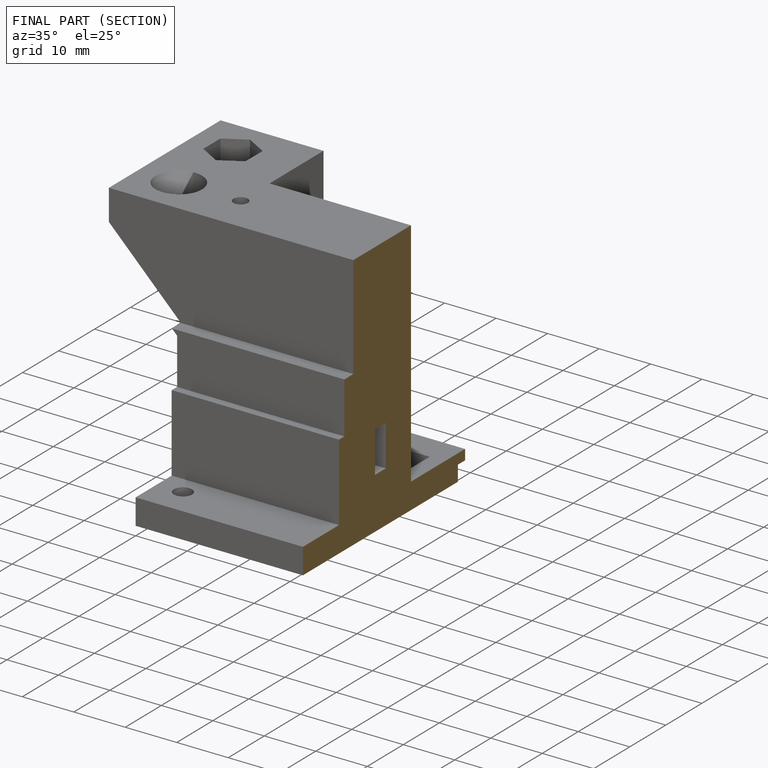
[diagram: finished part — half-section view (interior)]
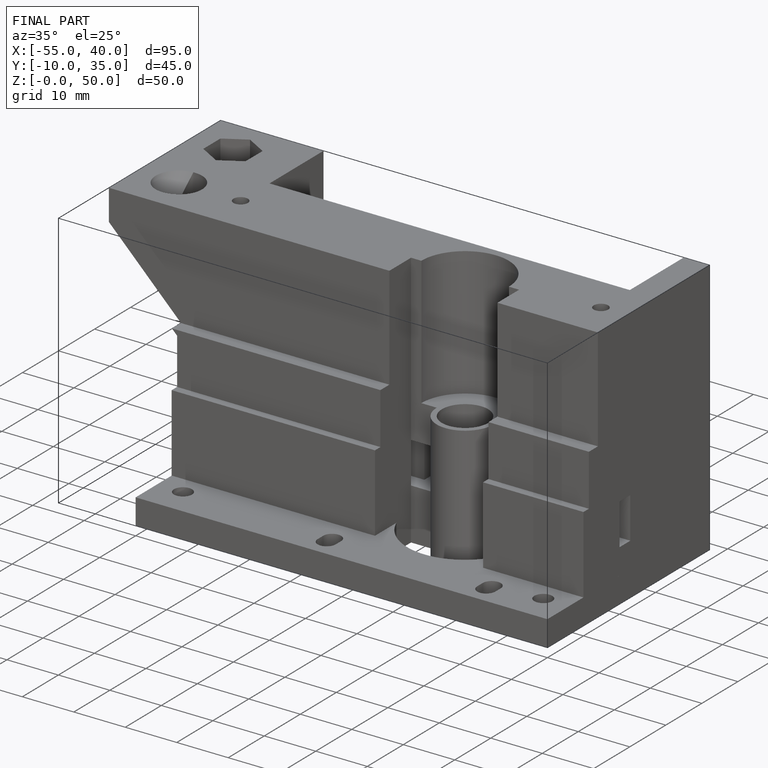
[diagram: finished part — iso view with bounding-box wireframe]
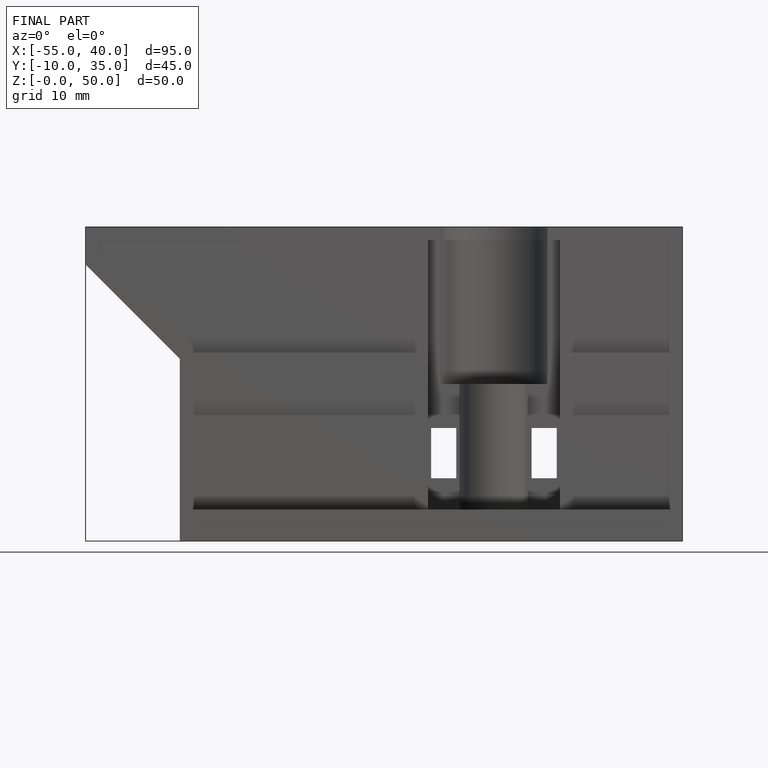
[diagram: finished part — front view with bounding-box wireframe]
